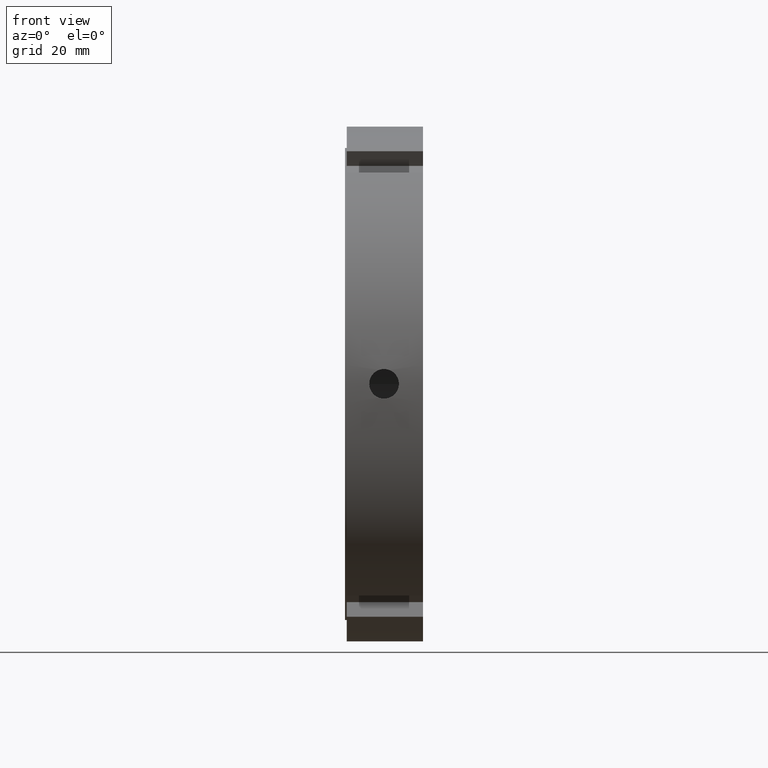
[diagram: clean part render]
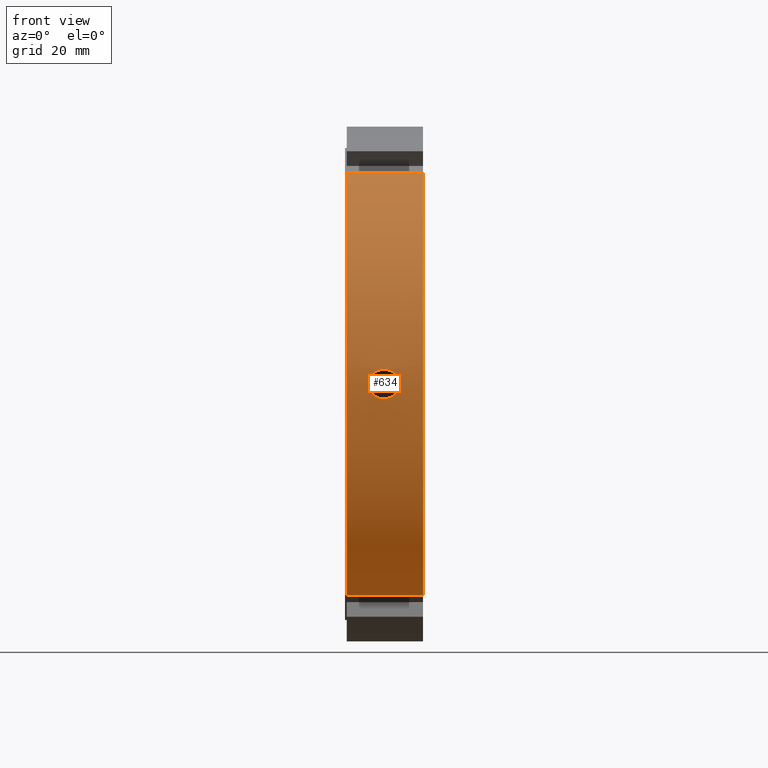
[diagram: same view with one face highlighted and labeled with its STEP entity id]
A machine part, front view. The second image highlights one B-rep face of the part: STEP entity #634.
In plain terms, the highlighted cylindrical surface (partial cylindrical patch) has radius 72.5 mm, axis along (1, 0, 0).
Its self-contained STEP definition (entity closure, byte-faithful):
#75=CARTESIAN_POINT('',(0.499999999999980,-41.321801205808129,-59.571459148720500));
#76=VERTEX_POINT('',#75);
#91=CARTESIAN_POINT('',(21.999999999999986,-41.321801205808129,-59.571459148720500));
#92=VERTEX_POINT('',#91);
#99=CARTESIAN_POINT('',(0.499999999999980,-41.321801205808121,-59.571459148720493));
#100=DIRECTION('',(1.0,0.0,0.0));
#101=VECTOR('',#100,21.500000000000007);
#102=LINE('',#99,#101);
#103=EDGE_CURVE('',#76,#92,#102,.T.);
#303=CARTESIAN_POINT('',(0.499999999999980,-41.321801205808072,59.571459148720521));
#304=VERTEX_POINT('',#303);
#313=CARTESIAN_POINT('',(21.999999999999986,-41.321801205808072,59.571459148720521));
#314=VERTEX_POINT('',#313);
#315=CARTESIAN_POINT('',(21.999999999999986,-41.321801205808072,59.571459148720521));
#316=DIRECTION('',(-1.0,0.0,0.0));
#317=VECTOR('',#316,21.500000000000007);
#318=LINE('',#315,#317);
#319=EDGE_CURVE('',#314,#304,#318,.T.);
#499=CARTESIAN_POINT('',(21.999999999999986,0.0,0.0));
#500=DIRECTION('',(1.0,0.0,0.0));
#501=DIRECTION('',(0.0,1.0,0.0));
#502=AXIS2_PLACEMENT_3D('',#499,#500,#501);
#503=CIRCLE('',#502,72.500000000000000);
#504=EDGE_CURVE('',#314,#92,#503,.T.);
#576=CARTESIAN_POINT('',(11.249999999999982,0.0,0.0));
#577=DIRECTION('',(1.0,0.0,0.0));
#578=DIRECTION('',(0.0,1.0,0.0));
#579=AXIS2_PLACEMENT_3D('',#576,#577,#578);
#580=CYLINDRICAL_SURFACE('',#579,72.500000000000000);
#581=ORIENTED_EDGE('',*,*,#103,.T.);
#582=ORIENTED_EDGE('',*,*,#504,.F.);
#583=ORIENTED_EDGE('',*,*,#319,.T.);
#584=CARTESIAN_POINT('',(0.499999999999980,0.0,0.0));
#585=DIRECTION('',(1.0,0.0,0.0));
#586=DIRECTION('',(0.0,1.0,0.0));
#587=AXIS2_PLACEMENT_3D('',#584,#585,#586);
#588=CIRCLE('',#587,72.500000000000000);
#589=EDGE_CURVE('',#304,#76,#588,.T.);
#590=ORIENTED_EDGE('',*,*,#589,.T.);
#591=EDGE_LOOP('',(#581,#582,#583,#590));
#592=FACE_OUTER_BOUND('',#591,.T.);
#593=CARTESIAN_POINT('',(10.999999999999982,-72.378937930864936,4.188000000000000));
#594=VERTEX_POINT('',#593);
#595=CARTESIAN_POINT('',(10.999999999999982,-72.378937930864936,4.188000000000000));
#596=CARTESIAN_POINT('',(11.525980321830991,-72.378937930864936,4.188000000000000));
#597=CARTESIAN_POINT('',(12.086939726019146,-72.385261418752975,4.082858736101519));
#598=CARTESIAN_POINT('',(13.118741718952098,-72.408105202534742,3.655421594396136));
#599=CARTESIAN_POINT('',(13.589594241376016,-72.424296152320352,3.333132157842492));
#600=CARTESIAN_POINT('',(14.333132017821303,-72.454692353057425,2.589594381397204));
#601=CARTESIAN_POINT('',(14.655421560537071,-72.470871509166685,2.118741795814656));
#602=CARTESIAN_POINT('',(15.082858790318497,-72.493688321118825,1.086939600014031));
#603=CARTESIAN_POINT('',(15.187999999999985,-72.500000000000000,0.525980123728452));
#604=CARTESIAN_POINT('',(15.187999999999985,-72.500000000000000,-0.525980123728451));
#605=CARTESIAN_POINT('',(15.082858790318497,-72.493688321118825,-1.086939600014031));
#606=CARTESIAN_POINT('',(14.655421560537071,-72.470871509166685,-2.118741795814656));
#607=CARTESIAN_POINT('',(14.333132017821303,-72.454692353057425,-2.589594381397203));
#608=CARTESIAN_POINT('',(13.589594241376016,-72.424296152320352,-3.333132157842491));
#609=CARTESIAN_POINT('',(13.118741718952098,-72.408105202534742,-3.655421594396136));
#610=CARTESIAN_POINT('',(12.086939726019143,-72.385261418752975,-4.082858736101520));
#611=CARTESIAN_POINT('',(11.525980321830991,-72.378937930864936,-4.188000000000000));
#612=CARTESIAN_POINT('',(10.474019678168975,-72.378937930864936,-4.188000000000000));
#613=CARTESIAN_POINT('',(9.913060273980820,-72.385261418752975,-4.082858736101517));
#614=CARTESIAN_POINT('',(8.881258281047867,-72.408105202534742,-3.655421594396133));
#615=CARTESIAN_POINT('',(8.410405758623954,-72.424296152320352,-3.333132157842492));
#616=CARTESIAN_POINT('',(7.666867982178665,-72.454692353057425,-2.589594381397204));
#617=CARTESIAN_POINT('',(7.344578439462898,-72.470871509166685,-2.118741795814656));
#618=CARTESIAN_POINT('',(6.917141209681472,-72.493688321118825,-1.086939600014031));
#619=CARTESIAN_POINT('',(6.811999999999983,-72.500000000000000,-0.525980123728452));
#620=CARTESIAN_POINT('',(6.811999999999983,-72.500000000000000,0.525980123728450));
#621=CARTESIAN_POINT('',(6.917141209681472,-72.493688321118839,1.086939600014029));
#622=CARTESIAN_POINT('',(7.344578439462898,-72.470871509166699,2.118741795814653));
#623=CARTESIAN_POINT('',(7.666867982178662,-72.454692353057425,2.589594381397201));
#624=CARTESIAN_POINT('',(8.410405758623952,-72.424296152320352,3.333132157842491));
#625=CARTESIAN_POINT('',(8.881258281047867,-72.408105202534742,3.655421594396134));
#626=CARTESIAN_POINT('',(9.913060273980820,-72.385261418752989,4.082858736101518));
#627=CARTESIAN_POINT('',(10.474019678168974,-72.378937930864936,4.188000000000000));
#628=CARTESIAN_POINT('',(10.999999999999980,-72.378937930864936,4.188000000000000));
#629=B_SPLINE_CURVE_WITH_KNOTS('',3,(#595,#596,#597,#598,#599,#600,#601,#602,#603,#604,#605,#606,#607,#608,#609,#610,#611,#612,#613,#614,#615,#616,#617,#618,#619,#620,#621,#622,#623,#624,#625,#626,#627,#628),.UNSPECIFIED.,.T.,.U.,(4,2,2,2,2,2,2,2,2,2,2,2,2,2,2,2,4),(0.0,0.157794096549302,0.315588193098605,0.473382230217140,0.631176267335676,0.788970304454211,0.946764341572747,1.104558438122049,1.262352534671352,1.420146631220654,1.577940727769956,1.735734764888492,1.893528802007027,2.051322839125563,2.209116876244099,2.366910972793401,2.524705069342704),.UNSPECIFIED.);
#630=EDGE_CURVE('',#594,#594,#629,.T.);
#631=ORIENTED_EDGE('',*,*,#630,.T.);
#632=EDGE_LOOP('',(#631));
#633=FACE_BOUND('',#632,.T.);
#634=ADVANCED_FACE('',(#592,#633),#580,.T.);